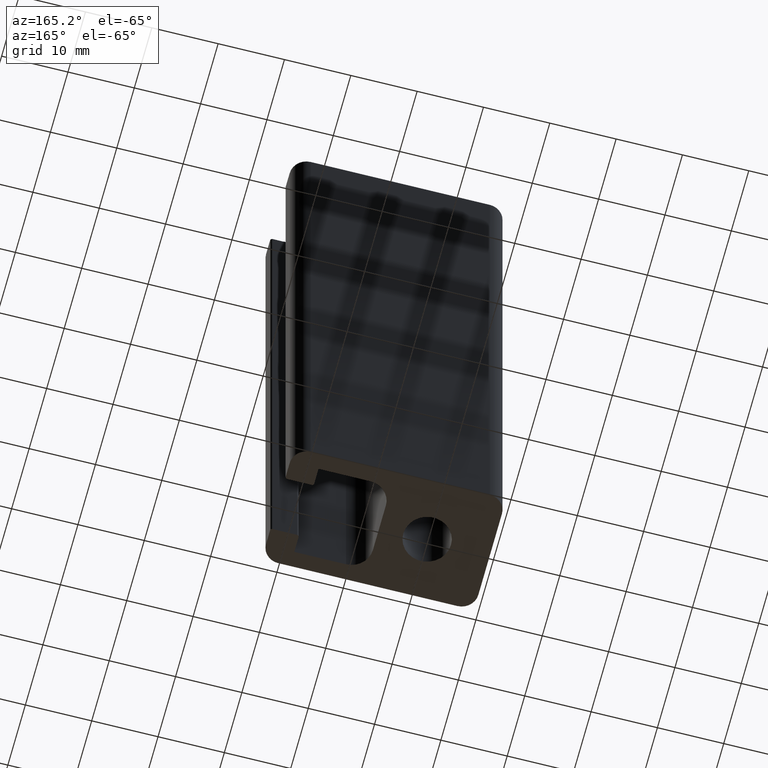
[diagram: clean part render]
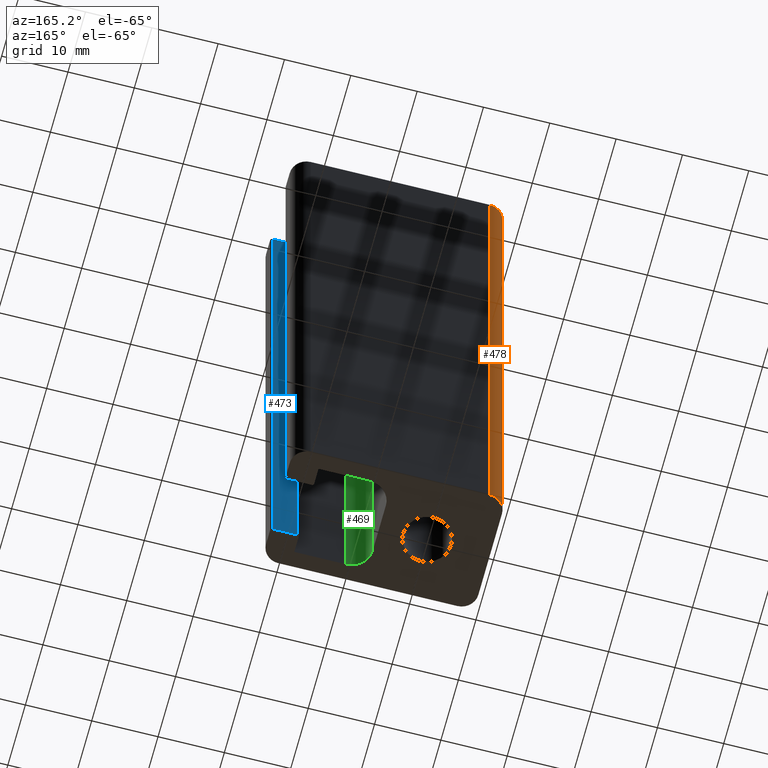
[diagram: same view with three faces highlighted in distinct colors, each labeled with its STEP entity id]
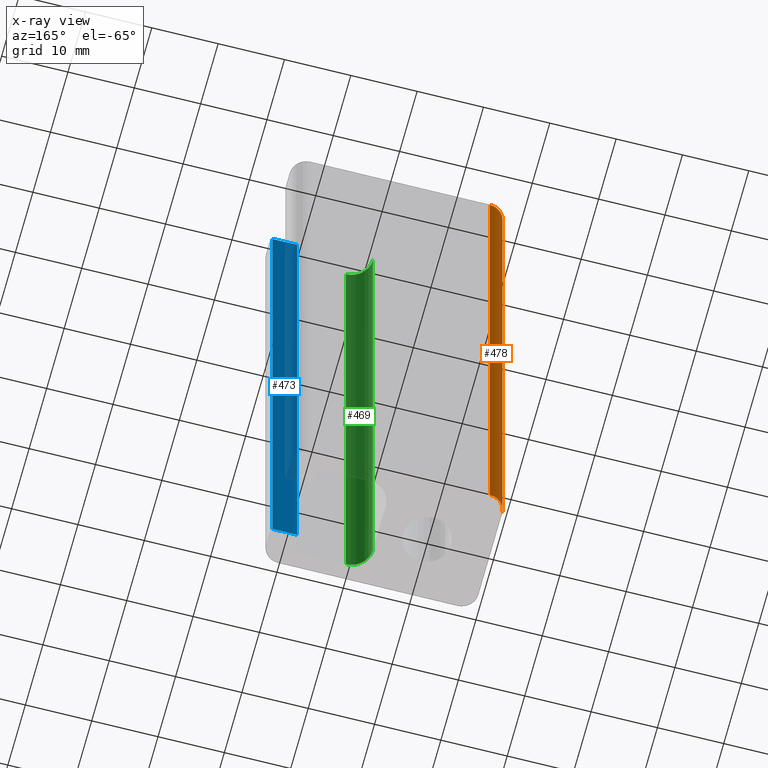
[diagram: x-ray of the same camera — body ghosted, the three highlighted faces saturated]
A machine part, auxiliary view with three faces highlighted in distinct colors.
The next image is the same camera in x-ray (body ghosted, the three faces saturated) — at least one of them is partly hidden behind the body in this view.
Their STEP definitions:

[orange] entity #478 — the highlighted cylindrical surface (edge-blend (fillet) strip) has radius 2.5 mm, axis along (0, 0, 1).
#66=LINE('',#793,#112);
#68=LINE('',#797,#114);
#112=VECTOR('',#647,100.);
#114=VECTOR('',#651,100.);
#142=FACE_OUTER_BOUND('',#169,.T.);
#169=EDGE_LOOP('',(#402,#403,#404,#405));
#192=CIRCLE('',#518,2.5);
#196=CIRCLE('',#525,2.5);
#232=VERTEX_POINT('',#772);
#233=VERTEX_POINT('',#774);
#240=VERTEX_POINT('',#792);
#241=VERTEX_POINT('',#796);
#292=EDGE_CURVE('',#233,#232,#192,.T.);
#301=EDGE_CURVE('',#240,#233,#66,.T.);
#303=EDGE_CURVE('',#241,#232,#68,.T.);
#304=EDGE_CURVE('',#240,#241,#196,.T.);
#402=ORIENTED_EDGE('',*,*,#292,.T.);
#403=ORIENTED_EDGE('',*,*,#303,.F.);
#404=ORIENTED_EDGE('',*,*,#304,.F.);
#405=ORIENTED_EDGE('',*,*,#301,.T.);
#457=CYLINDRICAL_SURFACE('',#524,2.5);
#478=ADVANCED_FACE('',(#142),#457,.T.);
#518=AXIS2_PLACEMENT_3D('',#775,#630,#631);
#524=AXIS2_PLACEMENT_3D('',#795,#649,#650);
#525=AXIS2_PLACEMENT_3D('',#798,#652,#653);
#630=DIRECTION('center_axis',(0.,0.,-1.));
#631=DIRECTION('ref_axis',(0.,1.,0.));
#647=DIRECTION('',(0.,0.,1.));
#649=DIRECTION('center_axis',(0.,0.,1.));
#650=DIRECTION('ref_axis',(0.,1.,0.));
#651=DIRECTION('',(0.,0.,1.));
#652=DIRECTION('center_axis',(0.,0.,-1.));
#653=DIRECTION('ref_axis',(0.,1.,0.));
#772=CARTESIAN_POINT('',(-7.,9.25,100.));
#774=CARTESIAN_POINT('',(-9.5,6.75,100.));
#775=CARTESIAN_POINT('Origin',(-7.,6.75,100.));
#792=CARTESIAN_POINT('',(-9.5,6.75,0.));
#793=CARTESIAN_POINT('',(-9.5,6.75,0.));
#795=CARTESIAN_POINT('Origin',(-7.,6.75,0.));
#796=CARTESIAN_POINT('',(-7.,9.25,0.));
#797=CARTESIAN_POINT('',(-7.,9.25,0.));
#798=CARTESIAN_POINT('Origin',(-7.,6.75,0.));

[blue] entity #473 — the highlighted planar face has unit normal (0, -1, 0).
#21=PLANE('',#514);
#30=LINE('',#690,#76);
#54=LINE('',#758,#100);
#55=LINE('',#761,#101);
#56=LINE('',#762,#102);
#76=VECTOR('',#549,100.);
#100=VECTOR('',#613,100.);
#101=VECTOR('',#618,3.7);
#102=VECTOR('',#619,3.7);
#137=FACE_OUTER_BOUND('',#163,.T.);
#163=EDGE_LOOP('',(#363,#364,#365,#366));
#202=VERTEX_POINT('',#684);
#204=VERTEX_POINT('',#688);
#227=VERTEX_POINT('',#755);
#228=VERTEX_POINT('',#757);
#250=EDGE_CURVE('',#204,#202,#30,.T.);
#283=EDGE_CURVE('',#228,#227,#54,.T.);
#285=EDGE_CURVE('',#202,#227,#55,.T.);
#286=EDGE_CURVE('',#228,#204,#56,.T.);
#363=ORIENTED_EDGE('',*,*,#285,.F.);
#364=ORIENTED_EDGE('',*,*,#250,.F.);
#365=ORIENTED_EDGE('',*,*,#286,.F.);
#366=ORIENTED_EDGE('',*,*,#283,.T.);
#473=ADVANCED_FACE('',(#137),#21,.F.);
#514=AXIS2_PLACEMENT_3D('',#760,#616,#617);
#549=DIRECTION('',(0.,0.,1.));
#613=DIRECTION('',(0.,0.,1.));
#616=DIRECTION('center_axis',(3.05311331771918E-13,-1.,0.));
#617=DIRECTION('ref_axis',(0.,0.,-1.));
#618=DIRECTION('',(-1.,-3.05311331771918E-13,0.));
#619=DIRECTION('',(1.,3.05311331771918E-13,0.));
#684=CARTESIAN_POINT('',(22.2,-4.15000000000001,100.));
#688=CARTESIAN_POINT('',(22.2,-4.15000000000001,0.));
#690=CARTESIAN_POINT('',(22.2,-4.15000000000001,0.));
#755=CARTESIAN_POINT('',(18.5,-4.15000000000114,100.));
#757=CARTESIAN_POINT('',(18.5,-4.15000000000114,0.));
#758=CARTESIAN_POINT('',(18.5,-4.15000000000114,0.));
#760=CARTESIAN_POINT('Origin',(22.2,-4.15000000000001,0.));
#761=CARTESIAN_POINT('',(14.3500000000006,-4.1500000000024,100.));
#762=CARTESIAN_POINT('',(14.3500000000006,-4.1500000000024,0.));

[green] entity #469 — the highlighted cylindrical surface (edge-blend (fillet) strip) has radius 3.2 mm, axis along (0, 0, 1).
#45=LINE('',#734,#91);
#47=LINE('',#740,#93);
#91=VECTOR('',#590,100.);
#93=VECTOR('',#596,100.);
#133=FACE_OUTER_BOUND('',#159,.T.);
#159=EDGE_LOOP('',(#347,#348,#349,#350));
#187=CIRCLE('',#507,3.19999999999361);
#188=CIRCLE('',#508,3.19999999999361);
#219=VERTEX_POINT('',#731);
#220=VERTEX_POINT('',#733);
#221=VERTEX_POINT('',#737);
#222=VERTEX_POINT('',#739);
#271=EDGE_CURVE('',#220,#219,#45,.T.);
#273=EDGE_CURVE('',#221,#219,#187,.T.);
#274=EDGE_CURVE('',#222,#221,#47,.T.);
#275=EDGE_CURVE('',#220,#222,#188,.T.);
#347=ORIENTED_EDGE('',*,*,#273,.F.);
#348=ORIENTED_EDGE('',*,*,#274,.F.);
#349=ORIENTED_EDGE('',*,*,#275,.F.);
#350=ORIENTED_EDGE('',*,*,#271,.T.);
#454=CYLINDRICAL_SURFACE('',#506,3.19999999999361);
#469=ADVANCED_FACE('',(#133),#454,.F.);
#506=AXIS2_PLACEMENT_3D('',#736,#592,#593);
#507=AXIS2_PLACEMENT_3D('',#738,#594,#595);
#508=AXIS2_PLACEMENT_3D('',#741,#597,#598);
#590=DIRECTION('',(0.,0.,1.));
#592=DIRECTION('center_axis',(0.,0.,1.));
#593=DIRECTION('ref_axis',(-1.,-1.99701366554849E-12,0.));
#594=DIRECTION('center_axis',(0.,0.,-1.));
#595=DIRECTION('ref_axis',(-1.,-1.99701366554849E-12,0.));
#596=DIRECTION('',(0.,0.,1.));
#597=DIRECTION('center_axis',(0.,0.,1.));
#598=DIRECTION('ref_axis',(-1.,-1.99701366554849E-12,0.));
#731=CARTESIAN_POINT('',(7.2,-3.7,100.));
#733=CARTESIAN_POINT('',(7.2,-3.7,0.));
#734=CARTESIAN_POINT('',(7.2,-3.7,0.));
#736=CARTESIAN_POINT('Origin',(10.3999999999936,-3.69999999999361,0.));
#737=CARTESIAN_POINT('',(10.4,-6.89999999998722,100.));
#738=CARTESIAN_POINT('Origin',(10.3999999999936,-3.69999999999361,100.));
#739=CARTESIAN_POINT('',(10.4,-6.89999999998722,0.));
#740=CARTESIAN_POINT('',(10.4,-6.89999999998722,0.));
#741=CARTESIAN_POINT('Origin',(10.3999999999936,-3.69999999999361,0.));